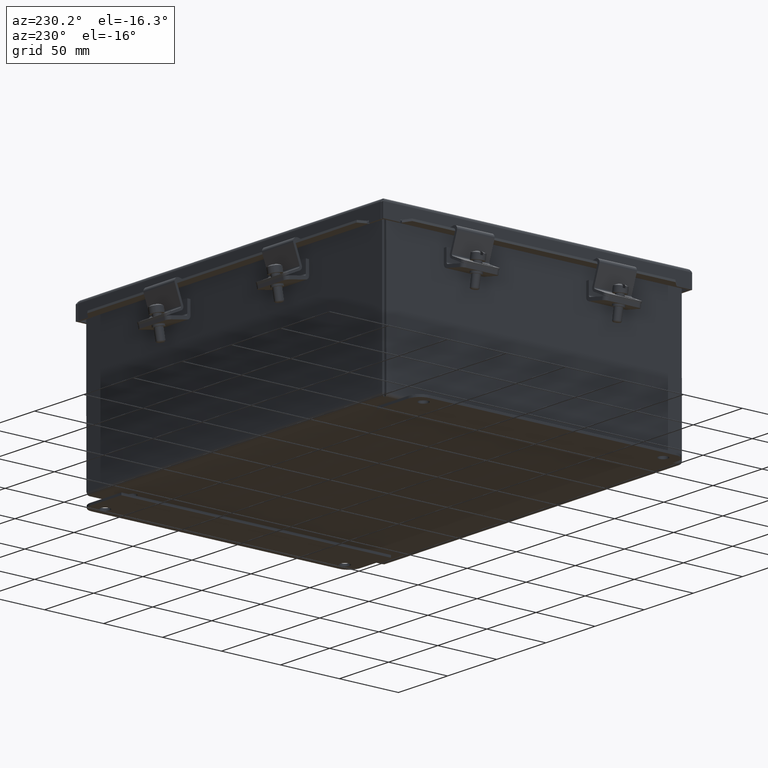
[diagram: clean part render]
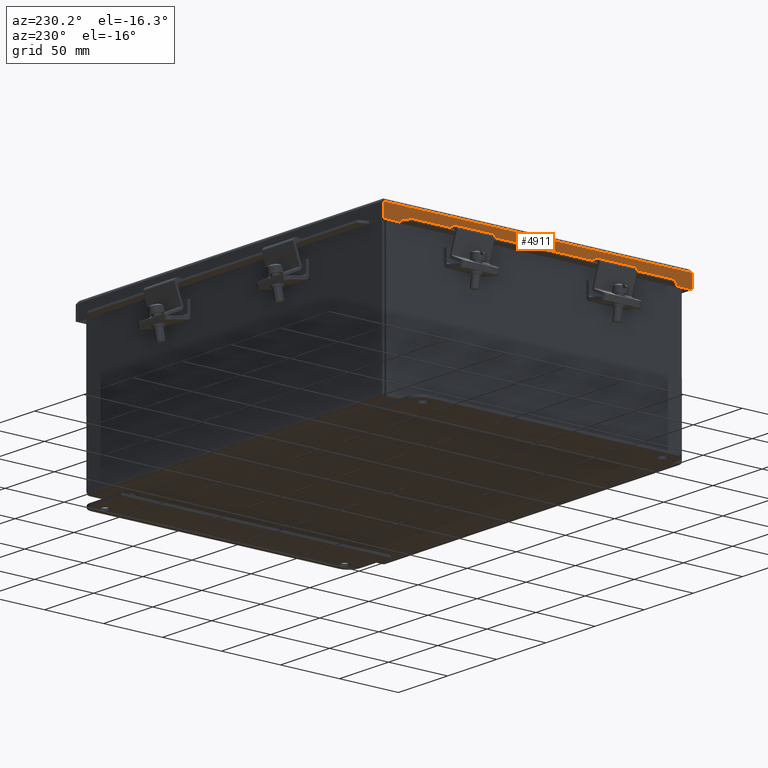
[diagram: same view with one face highlighted and labeled with its STEP entity id]
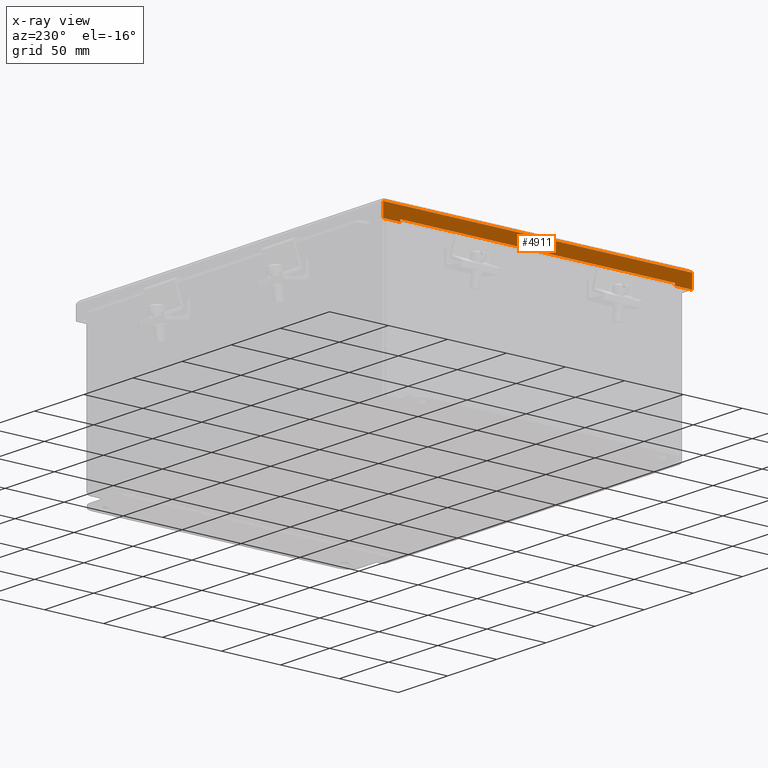
[diagram: x-ray of the same camera — body ghosted, the highlighted face saturated]
A machine part, auxiliary view. The second image highlights one B-rep face of the part: STEP entity #4911.
The next image is the same camera in x-ray: the body ghosted, the highlighted face saturated — about 0% of this face is hidden behind the body in this view.
In plain terms, the highlighted planar face has unit normal (1, 0, -0).
Its self-contained STEP definition (entity closure, byte-faithful):
#564=PLANE('',#5507);
#835=FACE_OUTER_BOUND('',#1135,.T.);
#1135=EDGE_LOOP('',(#3848,#3849,#3850,#3851,#3852,#3853,#3854,#3855,#3856,
#3857,#3858,#3859));
#1486=LINE('',#7637,#1953);
#1487=LINE('',#7639,#1954);
#1488=LINE('',#7641,#1955);
#1489=LINE('',#7643,#1956);
#1490=LINE('',#7645,#1957);
#1491=LINE('',#7647,#1958);
#1492=LINE('',#7649,#1959);
#1493=LINE('',#7651,#1960);
#1494=LINE('',#7653,#1961);
#1495=LINE('',#7655,#1962);
#1496=LINE('',#7657,#1963);
#1497=LINE('',#7658,#1964);
#1953=VECTOR('',#6202,0.393700787401575);
#1954=VECTOR('',#6203,0.393700787401575);
#1955=VECTOR('',#6204,0.393700787401575);
#1956=VECTOR('',#6205,0.393700787401575);
#1957=VECTOR('',#6206,0.393700787401575);
#1958=VECTOR('',#6207,0.393700787401575);
#1959=VECTOR('',#6208,0.393700787401575);
#1960=VECTOR('',#6209,0.393700787401575);
#1961=VECTOR('',#6210,0.393700787401575);
#1962=VECTOR('',#6211,0.393700787401575);
#1963=VECTOR('',#6212,0.393700787401575);
#1964=VECTOR('',#6213,0.393700787401575);
#2575=VERTEX_POINT('',#7635);
#2576=VERTEX_POINT('',#7636);
#2577=VERTEX_POINT('',#7638);
#2578=VERTEX_POINT('',#7640);
#2579=VERTEX_POINT('',#7642);
#2580=VERTEX_POINT('',#7644);
#2581=VERTEX_POINT('',#7646);
#2582=VERTEX_POINT('',#7648);
#2583=VERTEX_POINT('',#7650);
#2584=VERTEX_POINT('',#7652);
#2585=VERTEX_POINT('',#7654);
#2586=VERTEX_POINT('',#7656);
#3024=EDGE_CURVE('',#2575,#2576,#1486,.T.);
#3025=EDGE_CURVE('',#2577,#2576,#1487,.T.);
#3026=EDGE_CURVE('',#2578,#2577,#1488,.T.);
#3027=EDGE_CURVE('',#2578,#2579,#1489,.T.);
#3028=EDGE_CURVE('',#2579,#2580,#1490,.T.);
#3029=EDGE_CURVE('',#2580,#2581,#1491,.T.);
#3030=EDGE_CURVE('',#2581,#2582,#1492,.T.);
#3031=EDGE_CURVE('',#2582,#2583,#1493,.T.);
#3032=EDGE_CURVE('',#2583,#2584,#1494,.T.);
#3033=EDGE_CURVE('',#2584,#2585,#1495,.T.);
#3034=EDGE_CURVE('',#2586,#2585,#1496,.T.);
#3035=EDGE_CURVE('',#2586,#2575,#1497,.T.);
#3848=ORIENTED_EDGE('',*,*,#3024,.T.);
#3849=ORIENTED_EDGE('',*,*,#3025,.F.);
#3850=ORIENTED_EDGE('',*,*,#3026,.F.);
#3851=ORIENTED_EDGE('',*,*,#3027,.T.);
#3852=ORIENTED_EDGE('',*,*,#3028,.T.);
#3853=ORIENTED_EDGE('',*,*,#3029,.T.);
#3854=ORIENTED_EDGE('',*,*,#3030,.T.);
#3855=ORIENTED_EDGE('',*,*,#3031,.T.);
#3856=ORIENTED_EDGE('',*,*,#3032,.T.);
#3857=ORIENTED_EDGE('',*,*,#3033,.T.);
#3858=ORIENTED_EDGE('',*,*,#3034,.F.);
#3859=ORIENTED_EDGE('',*,*,#3035,.T.);
#4911=ADVANCED_FACE('',(#835),#564,.F.);
#5507=AXIS2_PLACEMENT_3D('',#7634,#6200,#6201);
#6200=DIRECTION('center_axis',(3.59547789421763E-17,-1.,1.23800990320297E-14));
#6201=DIRECTION('ref_axis',(1.,3.59547789421754E-17,-6.98328194069769E-17));
#6202=DIRECTION('',(-1.,-2.59478498612579E-16,4.25314973152349E-31));
#6203=DIRECTION('',(-4.18216204606889E-15,9.17685843251687E-15,-1.));
#6204=DIRECTION('',(-1.,-3.11207040341492E-16,-1.39620147677512E-16));
#6205=DIRECTION('',(1.0148275823686E-30,9.44624452382722E-15,-1.));
#6206=DIRECTION('',(1.,2.59478498612579E-16,3.32177432664746E-30));
#6207=DIRECTION('',(-1.0148275823686E-30,-9.44624452382722E-15,1.));
#6208=DIRECTION('',(1.,2.5947849861258E-16,-1.14489316126049E-16));
#6209=DIRECTION('',(1.0148275823686E-30,9.44624452382722E-15,-1.));
#6210=DIRECTION('',(1.,2.59478498612579E-16,3.32177432664746E-30));
#6211=DIRECTION('',(-1.37626130699649E-16,-9.44624452382722E-15,1.));
#6212=DIRECTION('',(-1.,-3.11207040341492E-16,-1.39620147677512E-16));
#6213=DIRECTION('',(-1.22358112433558E-14,9.17685843251687E-15,-1.));
#7634=CARTESIAN_POINT('Origin',(5.15625,12.3124999999999,-6.03087145294902));
#7635=CARTESIAN_POINT('',(10.3125,12.3125,0.105250000000004));
#7636=CARTESIAN_POINT('',(-2.79741234551221E-15,12.3125,0.105249999999999));
#7637=CARTESIAN_POINT('',(5.15625,12.3125,0.10525));
#7638=CARTESIAN_POINT('',(-2.98317800908138E-15,12.3125,0.562499999999997));
#7639=CARTESIAN_POINT('',(-4.89547160464636E-15,12.3125,0.105250000000001));
#7640=CARTESIAN_POINT('',(0.574707106781174,12.3125,0.562499999999999));
#7641=CARTESIAN_POINT('',(10.2377928932188,12.3125,0.562500000000002));
#7642=CARTESIAN_POINT('',(0.574707106781174,12.3125,0.48805770023143));
#7643=CARTESIAN_POINT('',(0.574707106781174,12.3125,0.390016875660665));
#7644=CARTESIAN_POINT('',(0.574907106781174,12.3125,0.48805770023143));
#7645=CARTESIAN_POINT('',(2.86557855339059,12.3125,0.48805770023143));
#7646=CARTESIAN_POINT('',(0.574907106781174,12.3125,0.488257700231431));
#7647=CARTESIAN_POINT('',(0.574907106781174,12.3125,0.408738025544949));
#7648=CARTESIAN_POINT('',(9.73759289321881,12.3125,0.488257700231431));
#7649=CARTESIAN_POINT('',(7.4469214466094,12.3125,0.488257700231431));
#7650=CARTESIAN_POINT('',(9.73759289321881,12.3125,0.48805770023143));
#7651=CARTESIAN_POINT('',(9.73759289321881,12.3125,0.390016875660665));
#7652=CARTESIAN_POINT('',(9.73779289321881,12.3125,0.48805770023143));
#7653=CARTESIAN_POINT('',(7.4470214466094,12.3125,0.48805770023143));
#7654=CARTESIAN_POINT('',(9.73779289321881,12.3125,0.562499999999999));
#7655=CARTESIAN_POINT('',(9.73779289321881,12.3125,0.408738025544949));
#7656=CARTESIAN_POINT('',(10.3125,12.3125,0.5625));
#7657=CARTESIAN_POINT('',(10.2377928932188,12.3125,0.562500000000002));
#7658=CARTESIAN_POINT('',(10.3125,12.3125,0.105250000000003));